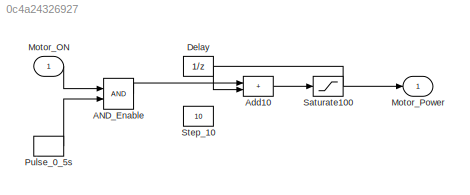
MODEL slx_0c4a24326927
KIND model
CONFIG AbsTol = auto
CONFIG EnableMultiTasking = off
CONFIG FixedStep = auto
CONFIG MaxStep = auto
CONFIG MinStep = auto
CONFIG RelTol = 1e-3
CONFIG SampleTimeConstraint = Unconstrained
CONFIG SolverName = VariableStepAuto
CONFIG StartTime = 0.0
CONFIG StopTime = 10.0
BLOCK [Logic] AND_Enable
  AllPortsSameDT = off
  OutDataTypeStr = boolean
BLOCK [Sum] Add10
  IconShape = rectangular
BLOCK [UnitDelay] Delay
  HasFrameUpgradeWarning = on
  SampleTime = 0.5
BLOCK [Inport] Motor_ON
BLOCK [Outport] Motor_Power
BLOCK [DiscretePulseGenerator] Pulse_0_5s
  Period = 1
  PulseType = Time based
  PulseWidth = 50
  SampleTime = 0.5
BLOCK [Saturate] Saturate100
  LowerLimit = 0
  UpperLimit = 100
BLOCK [Constant] Step_10
  Value = 10
LINE AND_Enable:1 -> Add10:1
LINE Add10:1 -> Saturate100:1
LINE Delay:1 -> Add10:2
LINE Motor_ON:1 -> AND_Enable:1
LINE Pulse_0_5s:1 -> AND_Enable:2
NET Saturate100:1 -> Delay:1, Motor_Power:1
note: NET lines group one-source signal fan-out (src -> all destinations, sorted); 1:1 wires keep LINE
